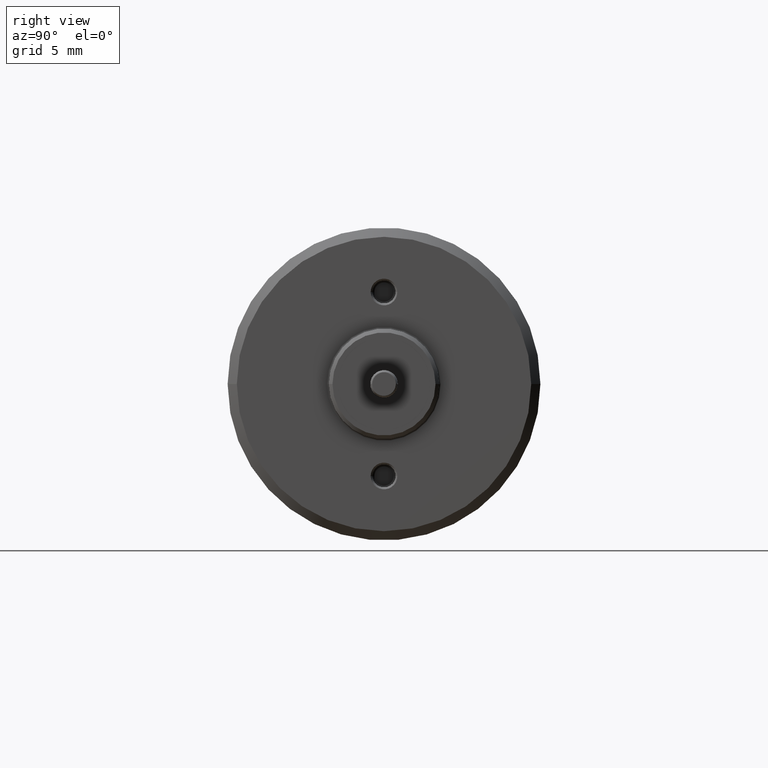
[diagram: clean part render]
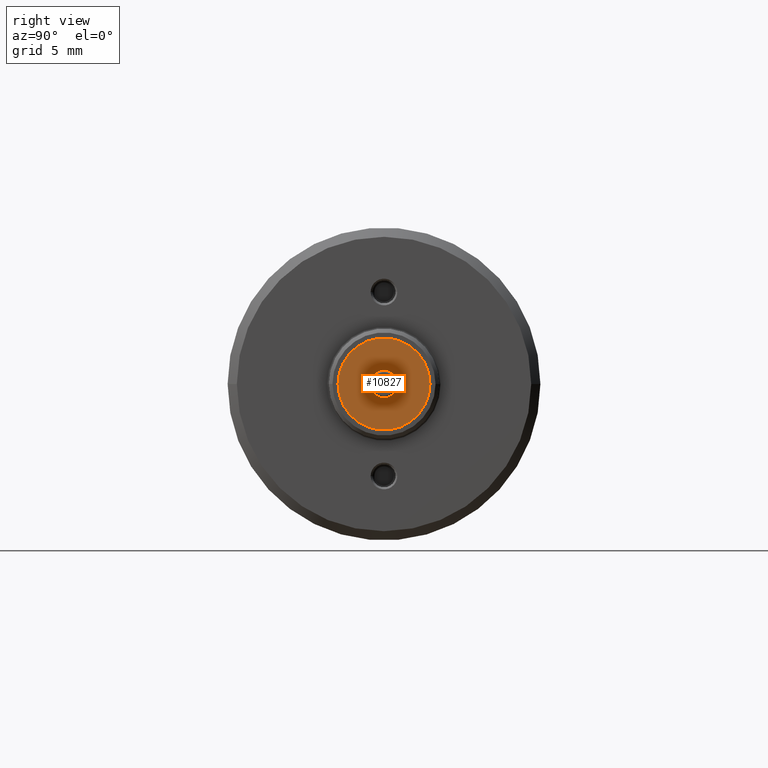
[diagram: same view with one face highlighted and labeled with its STEP entity id]
A machine part, right view. The second image highlights one B-rep face of the part: STEP entity #10827.
In plain terms, the highlighted planar face has unit normal (-1, 0, 0).
Its self-contained STEP definition (entity closure, byte-faithful):
#3758=CARTESIAN_POINT('',(1.5E0,0.E0,0.E0));
#3759=DIRECTION('',(-1.E0,0.E0,0.E0));
#3760=DIRECTION('',(0.E0,1.E0,0.E0));
#3761=AXIS2_PLACEMENT_3D('',#3758,#3759,#3760);
#3767=CARTESIAN_POINT('',(1.5E0,0.E0,0.E0));
#3768=DIRECTION('',(1.E0,0.E0,0.E0));
#3769=DIRECTION('',(0.E0,1.E0,0.E0));
#3770=AXIS2_PLACEMENT_3D('',#3767,#3768,#3769);
#3776=CARTESIAN_POINT('',(1.5E0,0.E0,0.E0));
#3777=DIRECTION('',(-1.E0,0.E0,0.E0));
#3778=DIRECTION('',(0.E0,1.E0,0.E0));
#3779=AXIS2_PLACEMENT_3D('',#3776,#3777,#3778);
#3781=CARTESIAN_POINT('',(1.5E0,0.E0,0.E0));
#3782=DIRECTION('',(1.E0,0.E0,0.E0));
#3783=DIRECTION('',(0.E0,1.E0,0.E0));
#3784=AXIS2_PLACEMENT_3D('',#3781,#3782,#3783);
#4344=CARTESIAN_POINT('',(1.5E0,2.5E0,0.E0));
#4346=VERTEX_POINT('',#4344);
#4352=CARTESIAN_POINT('',(1.5E0,-2.5E0,0.E0));
#4354=VERTEX_POINT('',#4352);
#4356=CARTESIAN_POINT('',(1.5E0,7.5E-1,0.E0));
#4357=CARTESIAN_POINT('',(1.5E0,-7.500000000001E-1,0.E0));
#4358=VERTEX_POINT('',#4356);
#4359=VERTEX_POINT('',#4357);
#10812=CARTESIAN_POINT('',(1.5E0,0.E0,0.E0));
#10813=DIRECTION('',(-1.E0,0.E0,0.E0));
#10814=DIRECTION('',(0.E0,1.E0,0.E0));
#10815=AXIS2_PLACEMENT_3D('',#10812,#10813,#10814);
#10816=PLANE('',#10815);
#10817=ORIENTED_EDGE('',*,*,#10805,.F.);
#10818=ORIENTED_EDGE('',*,*,#10794,.T.);
#10819=EDGE_LOOP('',(#10817,#10818));
#10820=FACE_OUTER_BOUND('',#10819,.F.);
#10822=ORIENTED_EDGE('',*,*,#10821,.F.);
#10824=ORIENTED_EDGE('',*,*,#10823,.T.);
#10825=EDGE_LOOP('',(#10822,#10824));
#10826=FACE_BOUND('',#10825,.F.);
#10827=ADVANCED_FACE('',(#10820,#10826),#10816,.F.);
#3762=CIRCLE('',#3761,2.5E0);
#3771=CIRCLE('',#3770,2.5E0);
#3780=CIRCLE('',#3779,7.500000000001E-1);
#3785=CIRCLE('',#3784,7.500000000001E-1);
#10794=EDGE_CURVE('',#4346,#4354,#3762,.T.);
#10805=EDGE_CURVE('',#4346,#4354,#3771,.T.);
#10821=EDGE_CURVE('',#4358,#4359,#3780,.T.);
#10823=EDGE_CURVE('',#4358,#4359,#3785,.T.);